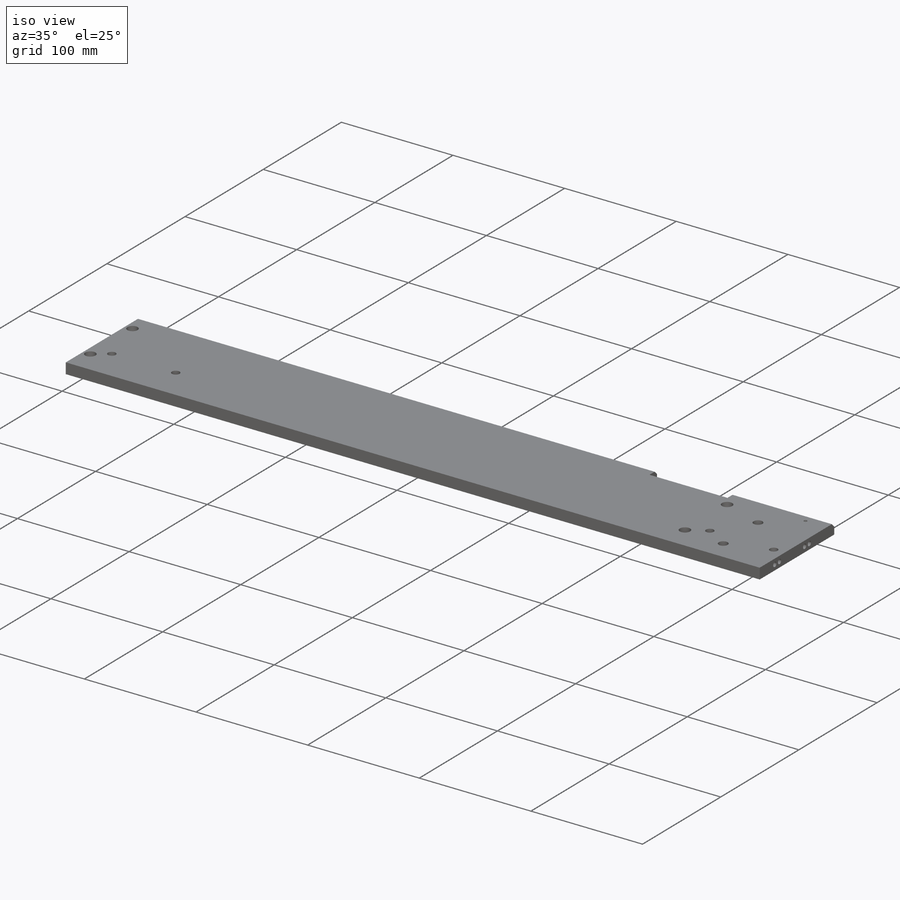
[diagram: iso view]
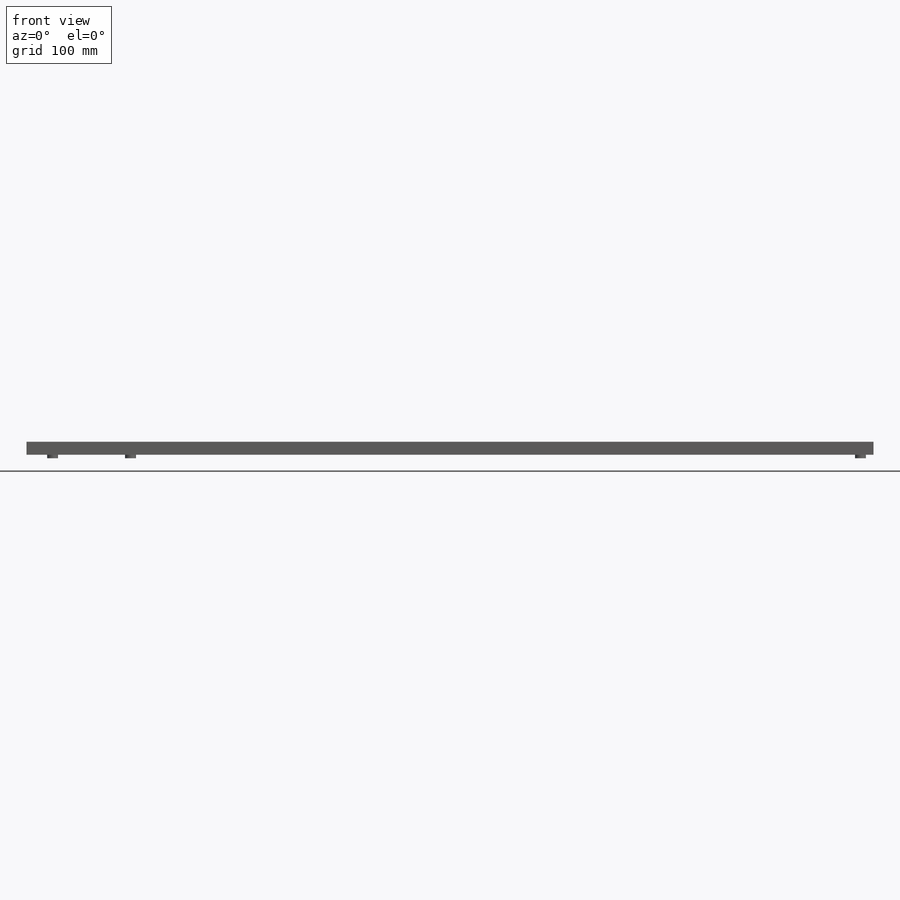
[diagram: front view]
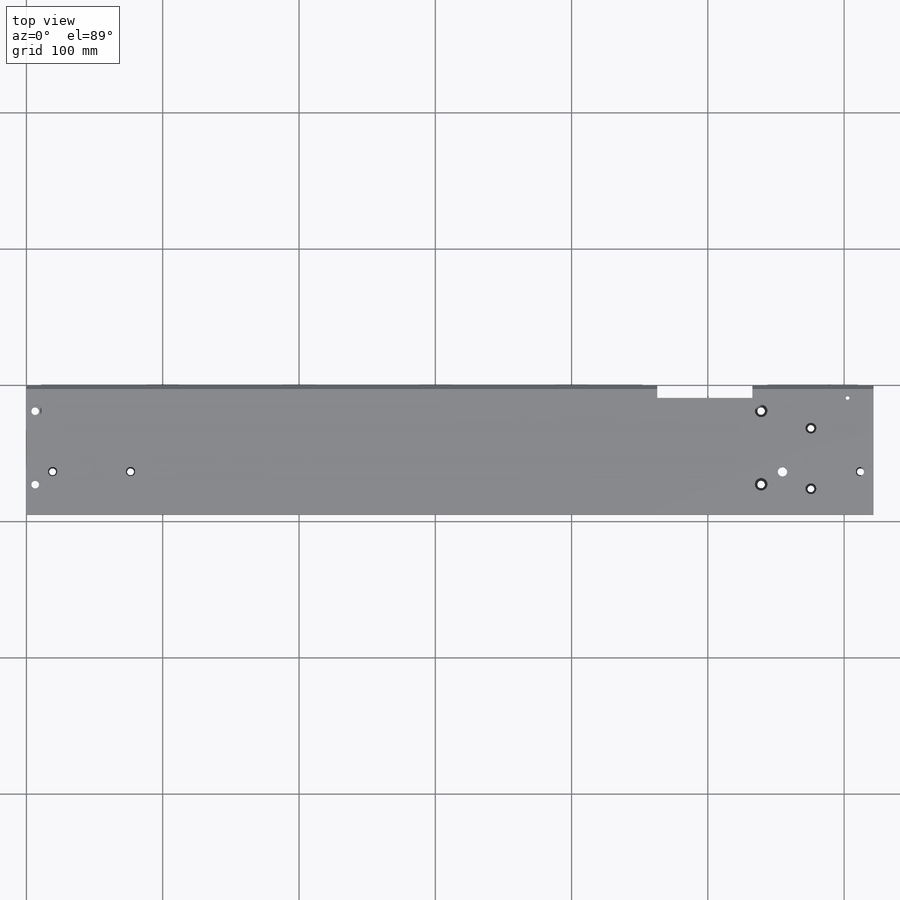
[diagram: top view]
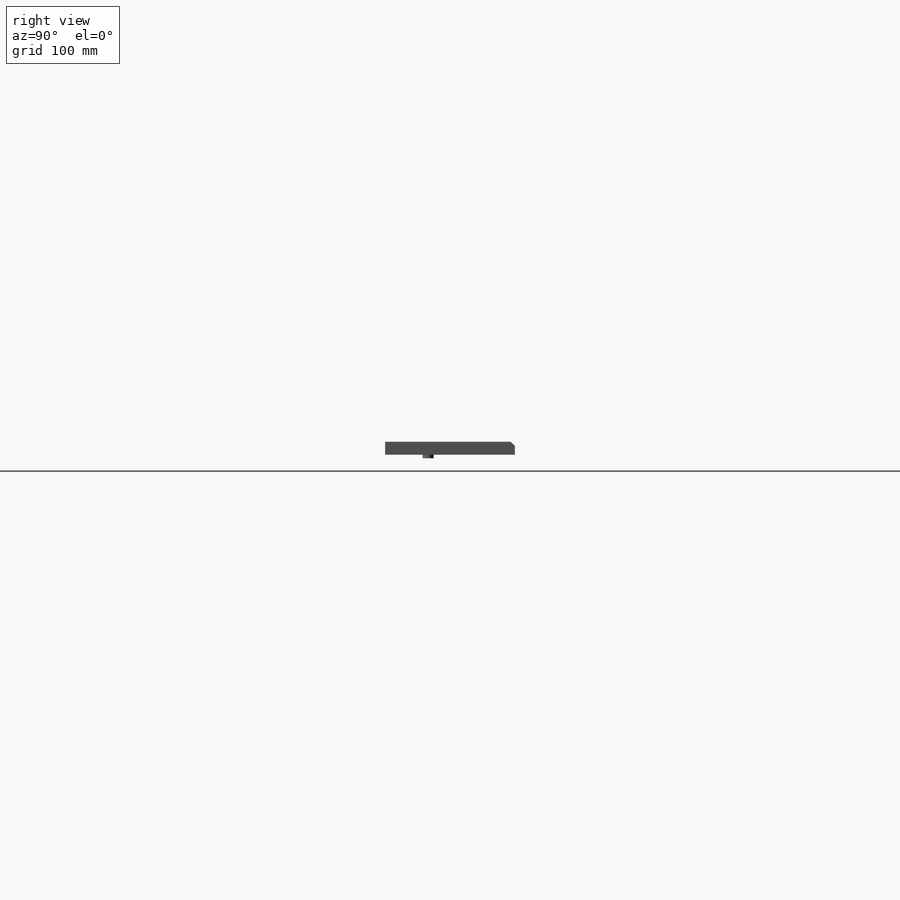
[diagram: right view]
SOLIDWORKS PART (.sldprt)
format: sldprt  version: not decoded by parser v0  size: 343,040 bytes
history: native  units: mm
features: sketch x8, cut_extrude x6, extrude x2, material x1, chamfer x1 (+11 scaffold rows collapsed)
feature tree (29):
  scaffold x11  (default folders/planes/origin — collapsed)
  material  "1060 Alloy"
  sketch  "Sketch1"  dims[D1=621.59mm D2=95.3mm D3=88.95mm D4=69.8mm D5=9.5mm]
  extrude  "Boss-Extrude1"  Depth=9.55mm
  chamfer  "Chamfer1"  Distance=3mm Angle=45deg
  sketch  "Sketch2"  dims[D1=5.59mm D2=9.22mm D7=6.89mm D8=5.13mm D12=7.96mm D13=4.96mm D14=2.77mm D3=17.64mm D4=1.81mm D5=53.89mm D6=15.69mm D9=28.16mm D10=57.21mm D11=77.91mm D15=6.5mm D16=17.66mm D17=6.15mm D18=42.0mm D19=44.44mm D20=15.04mm]
  cut_extrude  "Cut-Extrude1"  [1 undecoded]
  sketch  "Sketch3"
  cut_extrude  "Cut-Extrude2"  Depth=5.2mm
  sketch  "Sketch4"
  cut_extrude  "Cut-Extrude3"  Depth=4.54mm
  sketch  "Sketch5"
  cut_extrude  "Cut-Extrude4"  Depth=7.68mm
  sketch  "Sketch6"  dims[D1=8.0mm]
  extrude  "Boss-Extrude2"  Depth=2.5mm
  sketch  "Sketch7"  dims[D1=4.13mm D2=27.82mm D3=27.4mm]
  cut_extrude  "Cut-Extrude5"  Depth=18.99mm
  sketch  "Sketch8"  dims[D1=4.13mm D2=17.3mm D3=6.07mm D4=29.62mm]
  cut_extrude  "Cut-Extrude6"  Depth=18.7mm
decode coverage: 13 of 17 modeling features carry decoded parameters
note: 1 parameter value undecoded
note: suppression state not decoded; provenance and decode notes live in map.json
